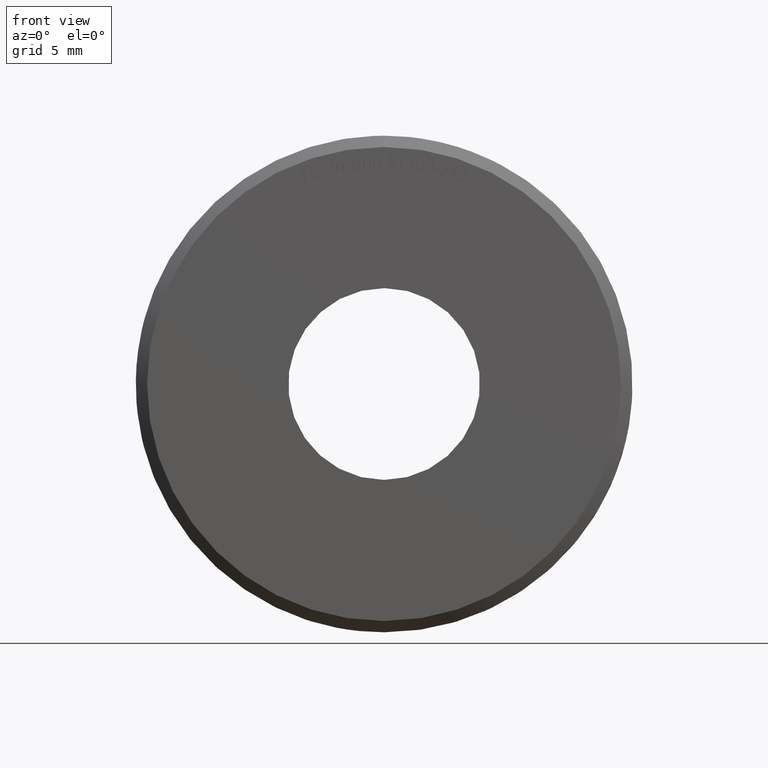
[diagram: clean part render]
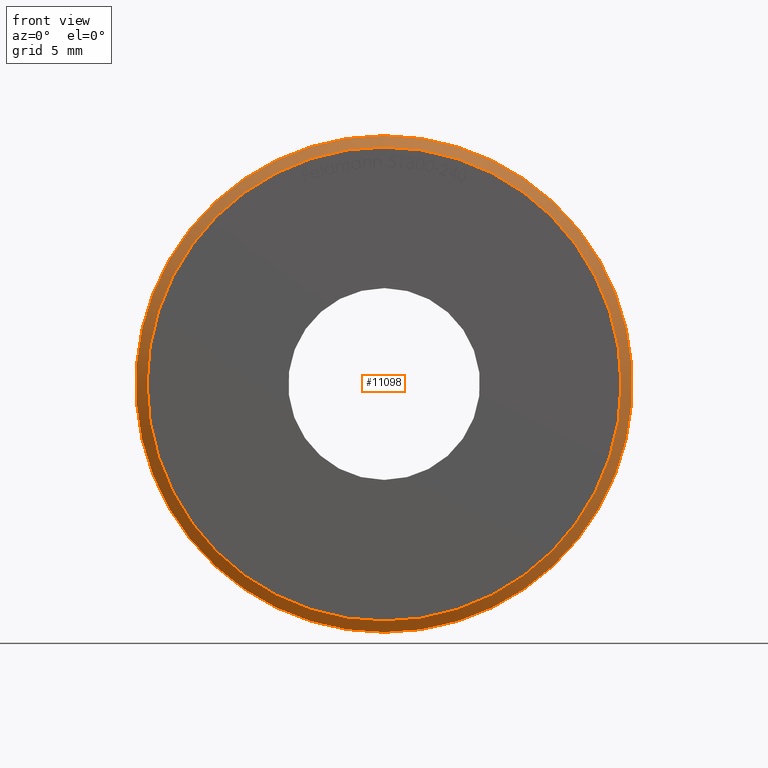
[diagram: same view with one face highlighted and labeled with its STEP entity id]
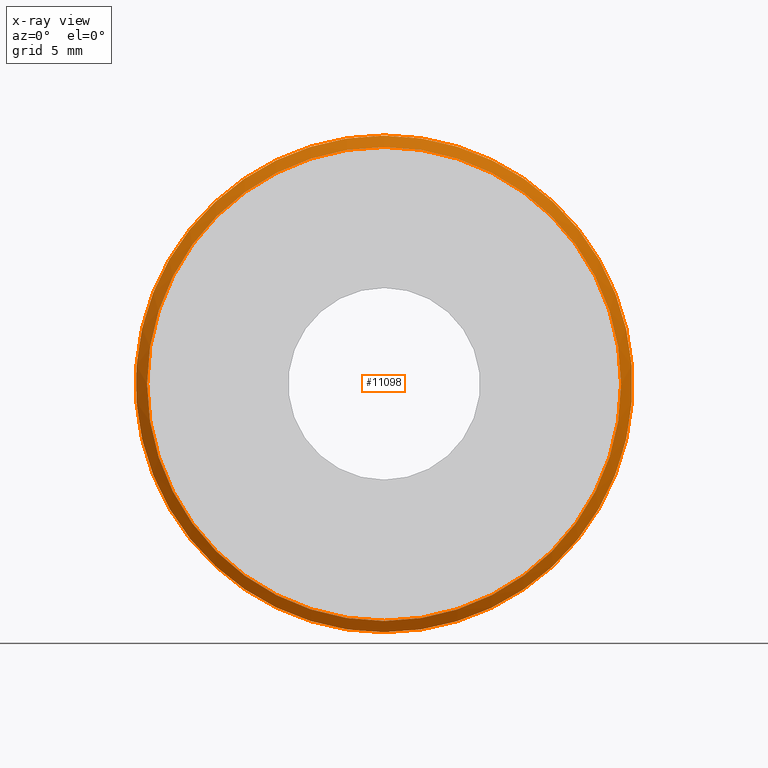
[diagram: x-ray of the same camera — body ghosted, the highlighted face saturated]
A machine part, front view. The second image highlights one B-rep face of the part: STEP entity #11098.
The next image is the same camera in x-ray: the body ghosted, the highlighted face saturated — about 0% of this face is hidden behind the body in this view.
In plain terms, the highlighted conical surface has half-angle 45 deg.
Its self-contained STEP definition (entity closure, byte-faithful):
#253 = AXIS2_PLACEMENT_3D ( 'NONE', #12665, #2554, #539 ) ;
#539 = DIRECTION ( 'NONE',  ( 0.000000000000000000, 0.000000000000000000, 1.000000000000000000 ) ) ;
#1065 = DIRECTION ( 'NONE',  ( -0.000000000000000000, -1.000000000000000000, -0.000000000000000000 ) ) ;
#1150 = CARTESIAN_POINT ( 'NONE',  ( 0.000000000000000000, 0.5000000000000004441, 0.000000000000000000 ) ) ;
#2554 = DIRECTION ( 'NONE',  ( -0.000000000000000000, 1.000000000000000000, -0.000000000000000000 ) ) ;
#2562 = FACE_OUTER_BOUND ( 'NONE', #5891, .T. ) ;
#3345 = VERTEX_POINT ( 'NONE', #7828 ) ;
#3826 = CIRCLE ( 'NONE', #7699, 10.49999999999999645 ) ;
#4303 = DIRECTION ( 'NONE',  ( 0.000000000000000000, 0.000000000000000000, 1.000000000000000000 ) ) ;
#5891 = EDGE_LOOP ( 'NONE', ( #10146 ) ) ;
#6096 = CARTESIAN_POINT ( 'NONE',  ( 0.000000000000000000, 0.000000000000000000, 0.000000000000000000 ) ) ;
#6133 = DIRECTION ( 'NONE',  ( 0.000000000000000000, 0.000000000000000000, 1.000000000000000000 ) ) ;
#6891 = CARTESIAN_POINT ( 'NONE',  ( 0.000000000000000000, 0.000000000000000000, 10.49999999999999645 ) ) ;
#7699 = AXIS2_PLACEMENT_3D ( 'NONE', #6096, #1065, #6133 ) ;
#7828 = CARTESIAN_POINT ( 'NONE',  ( 0.000000000000000000, 0.5000000000000004441, 11.00000000000000000 ) ) ;
#8218 = DIRECTION ( 'NONE',  ( -0.000000000000000000, 1.000000000000000000, -0.000000000000000000 ) ) ;
#8760 = EDGE_CURVE ( 'NONE', #3345, #3345, #10572, .T. ) ;
#8876 = EDGE_LOOP ( 'NONE', ( #12283 ) ) ;
#10146 = ORIENTED_EDGE ( 'NONE', *, *, #8760, .F. ) ;
#10237 = FACE_BOUND ( 'NONE', #8876, .T. ) ;
#10549 = CONICAL_SURFACE ( 'NONE', #12290, 11.00000000000000000, 0.7853981633974500554 ) ;
#10572 = CIRCLE ( 'NONE', #253, 11.00000000000000000 ) ;
#11098 = ADVANCED_FACE ( 'NONE', ( #10237, #2562 ), #10549, .T. ) ;
#11137 = EDGE_CURVE ( 'NONE', #13063, #13063, #3826, .T. ) ;
#12283 = ORIENTED_EDGE ( 'NONE', *, *, #11137, .F. ) ;
#12290 = AXIS2_PLACEMENT_3D ( 'NONE', #1150, #8218, #4303 ) ;
#12665 = CARTESIAN_POINT ( 'NONE',  ( 0.000000000000000000, 0.5000000000000004441, 0.000000000000000000 ) ) ;
#13063 = VERTEX_POINT ( 'NONE', #6891 ) ;